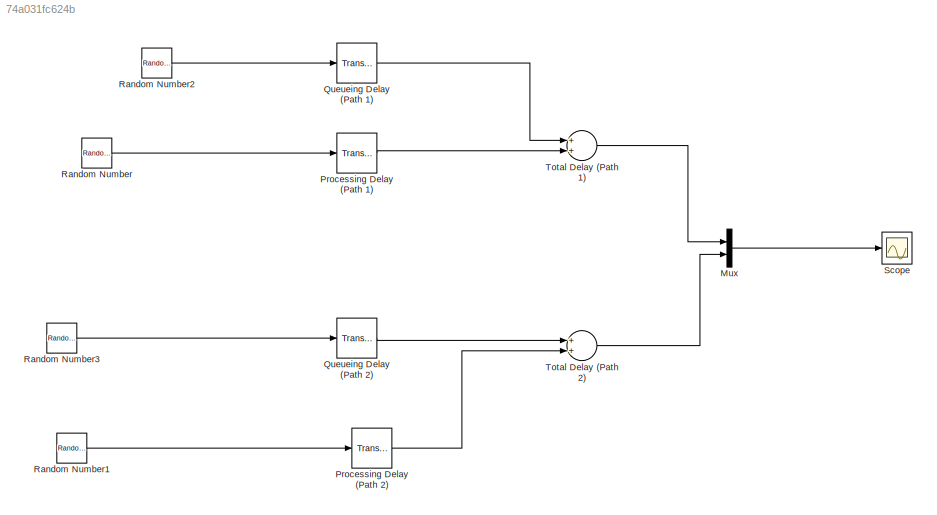
MODEL slx_74a031fc624b
KIND model
CONFIG AbsTol = auto
CONFIG EnableMultiTasking = off
CONFIG FixedStep = auto
CONFIG MaxStep = auto
CONFIG MinStep = auto
CONFIG RelTol = 1e-3
CONFIG SampleTimeConstraint = Unconstrained
CONFIG Solver = VariableStepAuto
CONFIG SolverName = VariableStepAuto
CONFIG StartTime = 0.0
CONFIG StopTime = 10.0
BLOCK [Mux] Mux
  DisplayOption = bar
  Inputs = 2
  Ports = [2, 1]
BLOCK [TransportDelay] Processing Delay (Path 1)
  DelayTime = 154
  Ports = [1, 1]
BLOCK [TransportDelay] Processing Delay (Path 2) 
  DelayTime = 84
  Ports = [1, 1]
BLOCK [TransportDelay] Queueing Delay (Path 1)
  DelayTime = 289
  Ports = [1, 1]
BLOCK [TransportDelay] Queueing Delay (Path 2)
  DelayTime = 47
  Ports = [1, 1]
BLOCK [RandomNumber] Random Number
  Mean = 289
  SampleTime = 0.1
  Variance = 28.9
BLOCK [RandomNumber] Random Number1
  Mean = 84
  SampleTime = 0.1
  Variance = 10
BLOCK [RandomNumber] Random Number2
  Mean = 289
  SampleTime = 0.1
  Variance = 28.9
BLOCK [RandomNumber] Random Number3
  Mean = 84
  SampleTime = 0.1
  Variance = 10
BLOCK [Scope] Scope
  Floating = off
  NumInputPorts = 1
  Ports = [1]
  ScopeSpecificationString = Simulink.scopes.TimeScopeBlockCfg('CurrentConfiguration', extmgr.ConfigurationSet(extmgr.Configuration('Core','General UI',true),extmgr.Configuration('Core','Source UI',true),extmgr.Configuration('Sources','WiredSimulink',true),extmgr.Configuration('Visuals','Time Domain',true,'SerializedDisplays',{struct('MinYLimReal','-1.00000','MaxYLimReal','1.00000','YLabelReal','','MinYLimMag','0.00000','MaxY...<+1363ch>
BLOCK [Sum] Total Delay (Path 1)
  InputSameDT = off
  OutDataTypeStr = Inherit: Inherit via internal rule
  Ports = [2, 1]
  SaturateOnIntegerOverflow = off
BLOCK [Sum] Total Delay (Path 2)
  InputSameDT = off
  OutDataTypeStr = Inherit: Inherit via internal rule
  Ports = [2, 1]
  SaturateOnIntegerOverflow = off
LINE Mux:1 -> Scope:1
LINE Processing Delay (Path 1):1 -> Total Delay (Path 1):2
LINE Processing Delay (Path 2) :1 -> Total Delay (Path 2):2
LINE Queueing Delay (Path 1):1 -> Total Delay (Path 1):1
LINE Queueing Delay (Path 2):1 -> Total Delay (Path 2):1
LINE Random Number1:1 -> Processing Delay (Path 2) :1
LINE Random Number2:1 -> Queueing Delay (Path 1):1
LINE Random Number3:1 -> Queueing Delay (Path 2):1
LINE Random Number:1 -> Processing Delay (Path 1):1
LINE Total Delay (Path 1):1 -> Mux:1
LINE Total Delay (Path 2):1 -> Mux:2
